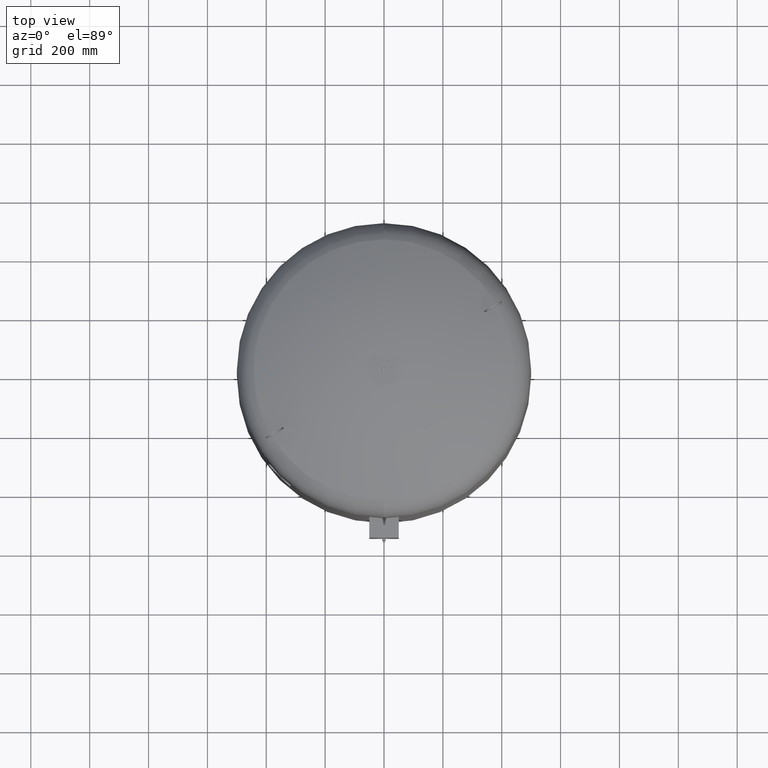
[diagram: clean part render]
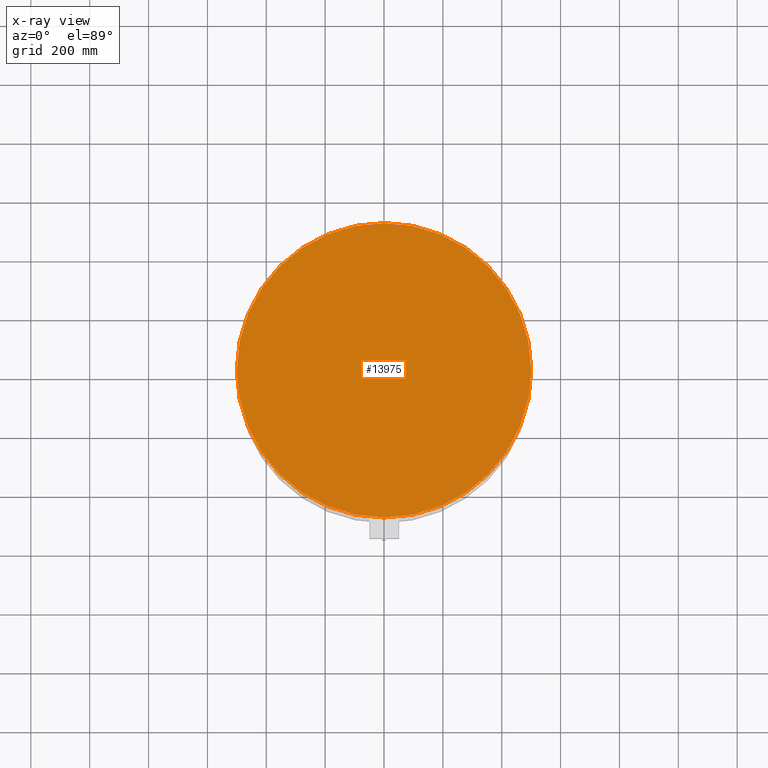
[diagram: x-ray — body ghosted, one internal face saturated and labeled with its STEP entity id]
A machine part, top view, then the same camera in x-ray: the body is ghosted and one INTERNAL B-rep face — a face not visible from any outside direction — is saturated and labeled: STEP entity #13975.
In plain terms, the highlighted planar face has unit normal (0, 0, -1).
Its self-contained STEP definition (entity closure, byte-faithful):
#13242=CARTESIAN_POINT('',(500.0,-3.995410E-014,1751.500000000000000));
#13243=VERTEX_POINT('',#13242);
#13252=CARTESIAN_POINT('',(-500.0,2.127622E-014,1751.500000000000000));
#13253=VERTEX_POINT('',#13252);
#13254=CARTESIAN_POINT('',(2.541624E-015,-3.995410E-014,1751.500000000000000));
#13255=DIRECTION('',(0.0,0.0,-1.0));
#13256=DIRECTION('',(1.0,0.0,0.0));
#13257=AXIS2_PLACEMENT_3D('',#13254,#13255,#13256);
#13258=CIRCLE('',#13257,500.0);
#13259=EDGE_CURVE('',#13253,#13243,#13258,.T.);
#13956=CARTESIAN_POINT('',(2.541624E-015,-3.995410E-014,1751.500000000000000));
#13957=DIRECTION('',(0.0,0.0,-1.0));
#13958=DIRECTION('',(1.0,0.0,0.0));
#13959=AXIS2_PLACEMENT_3D('',#13956,#13957,#13958);
#13960=CIRCLE('',#13959,500.0);
#13961=EDGE_CURVE('',#13243,#13253,#13960,.T.);
#13966=CARTESIAN_POINT('',(249.999999999999970,-3.995410E-014,1751.500000000000000));
#13967=DIRECTION('',(0.0,0.0,-1.0));
#13968=DIRECTION('',(0.0,-1.0,0.0));
#13969=AXIS2_PLACEMENT_3D('',#13966,#13967,#13968);
#13970=PLANE('',#13969);
#13971=ORIENTED_EDGE('',*,*,#13961,.T.);
#13972=ORIENTED_EDGE('',*,*,#13259,.T.);
#13973=EDGE_LOOP('',(#13971,#13972));
#13974=FACE_OUTER_BOUND('',#13973,.T.);
#13975=ADVANCED_FACE('',(#13974),#13970,.T.);